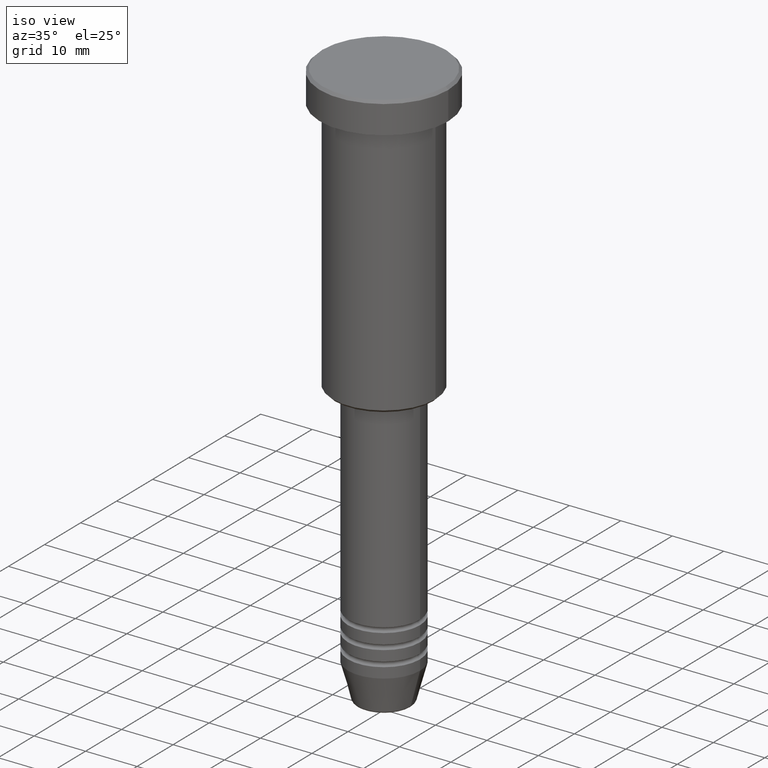
[diagram: clean part render]
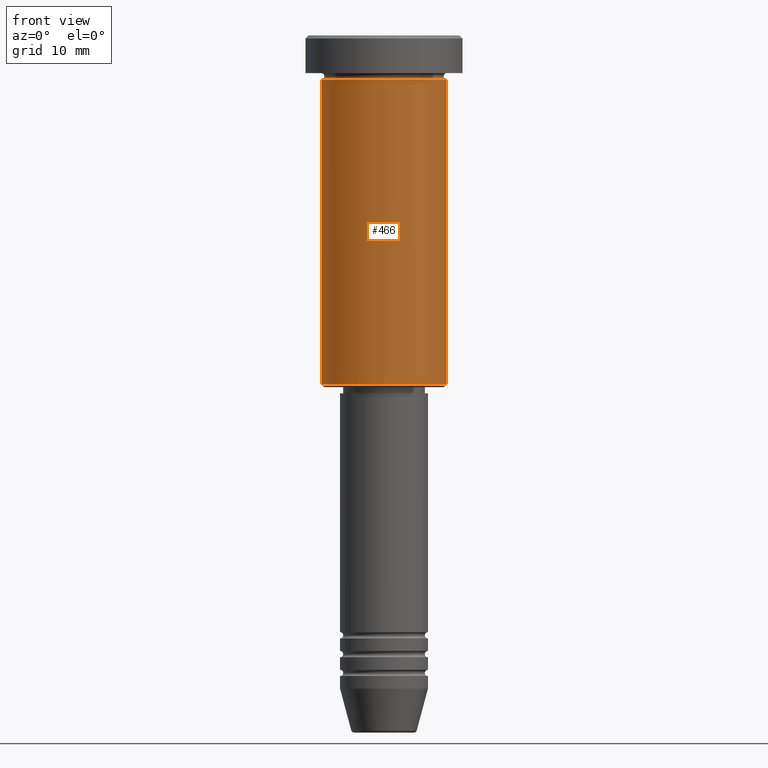
[diagram: tour spotlight — one face highlighted and labeled with its STEP entity id]
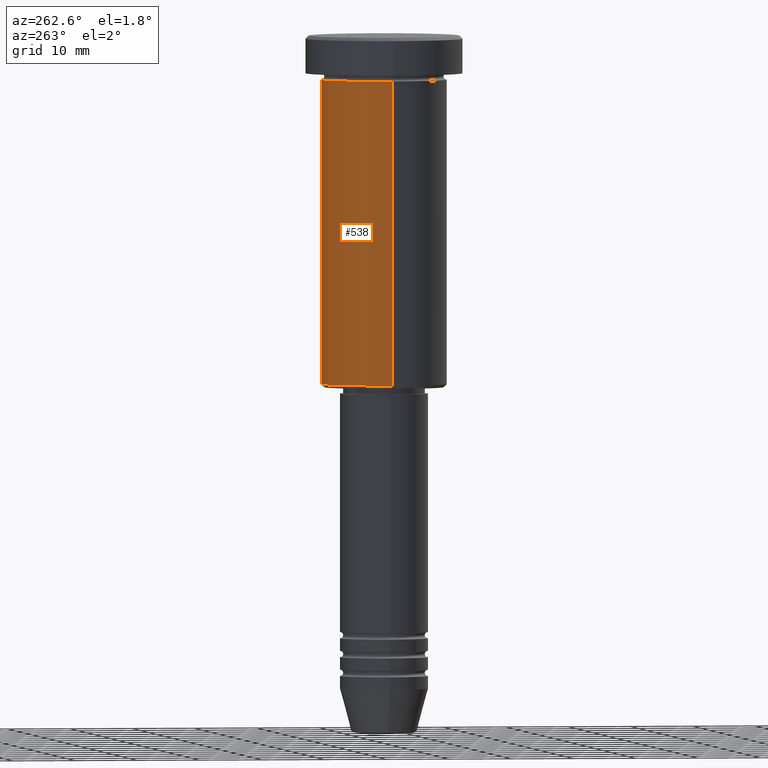
[diagram: tour spotlight — one face highlighted and labeled with its STEP entity id]
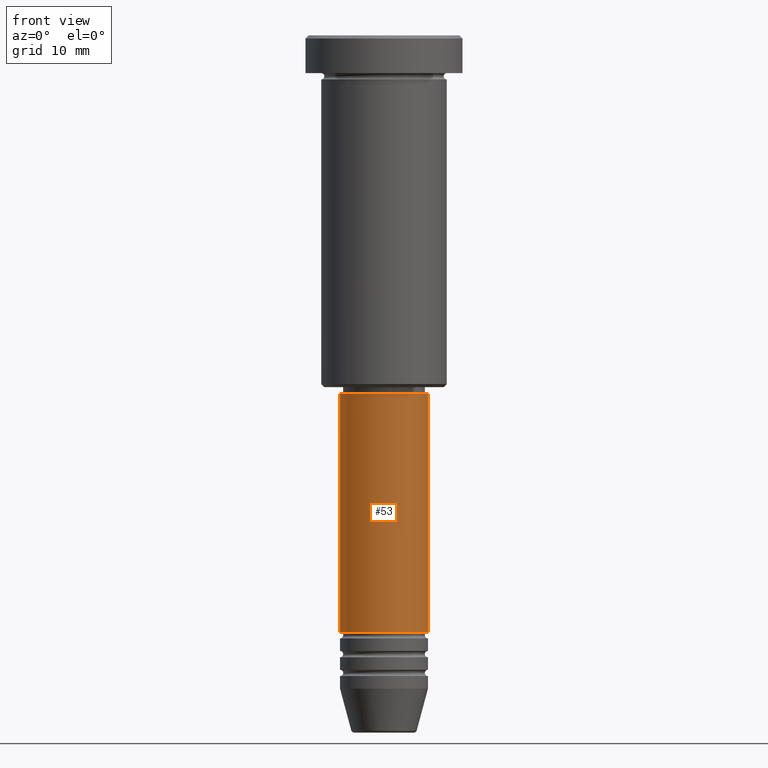
[diagram: tour spotlight — one face highlighted and labeled with its STEP entity id]
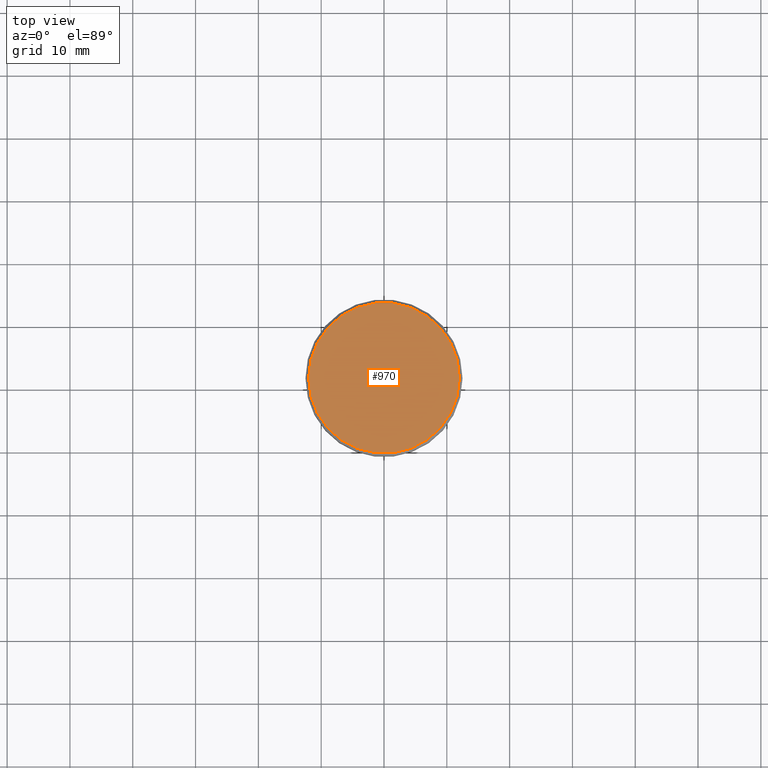
[diagram: tour spotlight — one face highlighted and labeled with its STEP entity id]
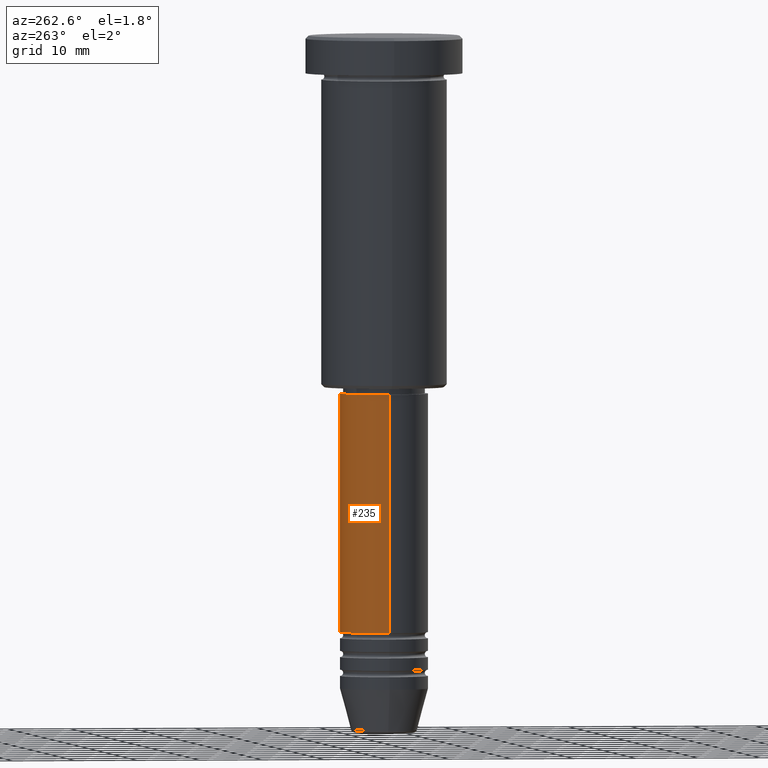
[diagram: tour spotlight — one face highlighted and labeled with its STEP entity id]
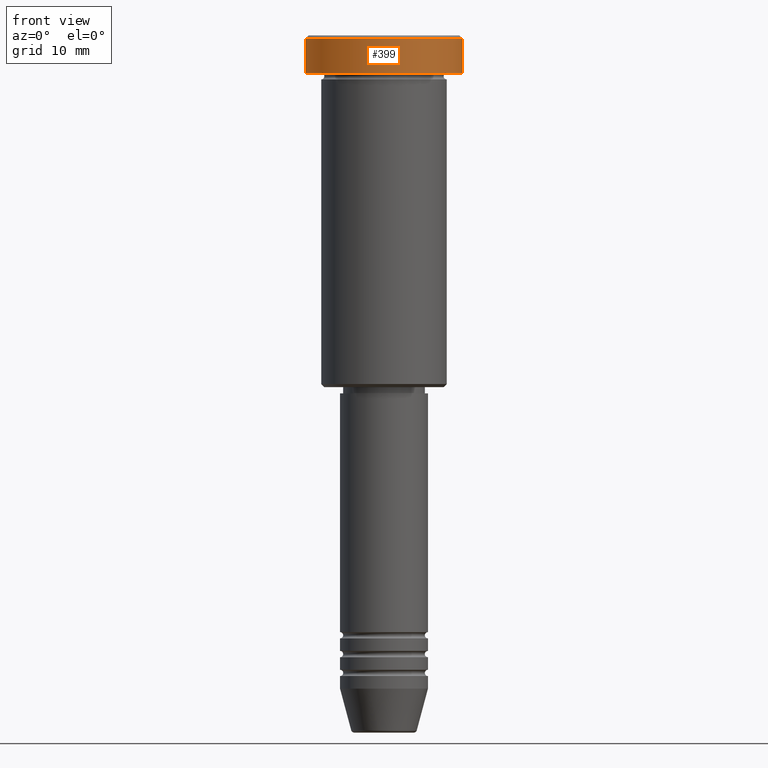
[diagram: tour spotlight — one face highlighted and labeled with its STEP entity id]
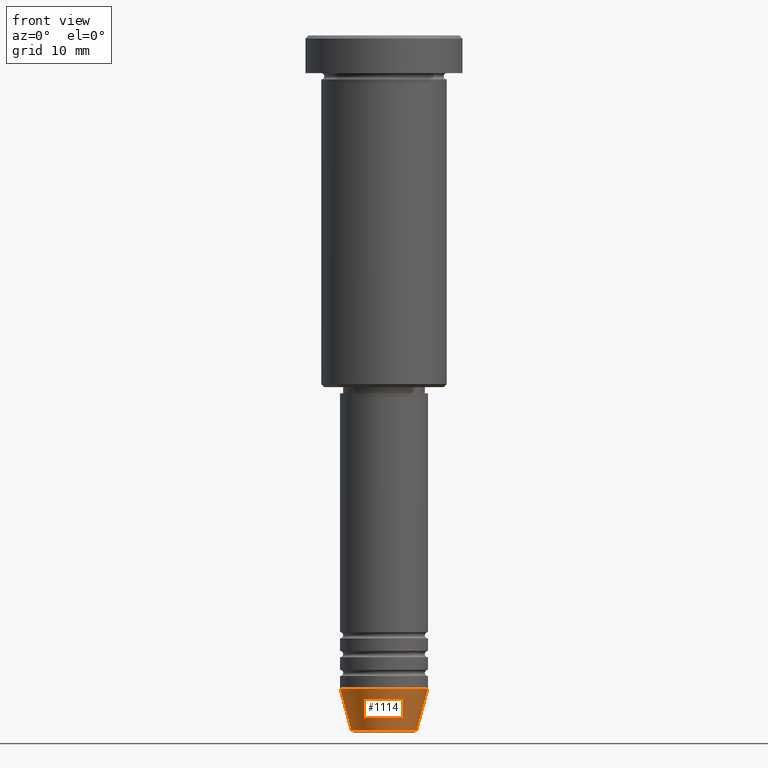
[diagram: tour spotlight — one face highlighted and labeled with its STEP entity id]
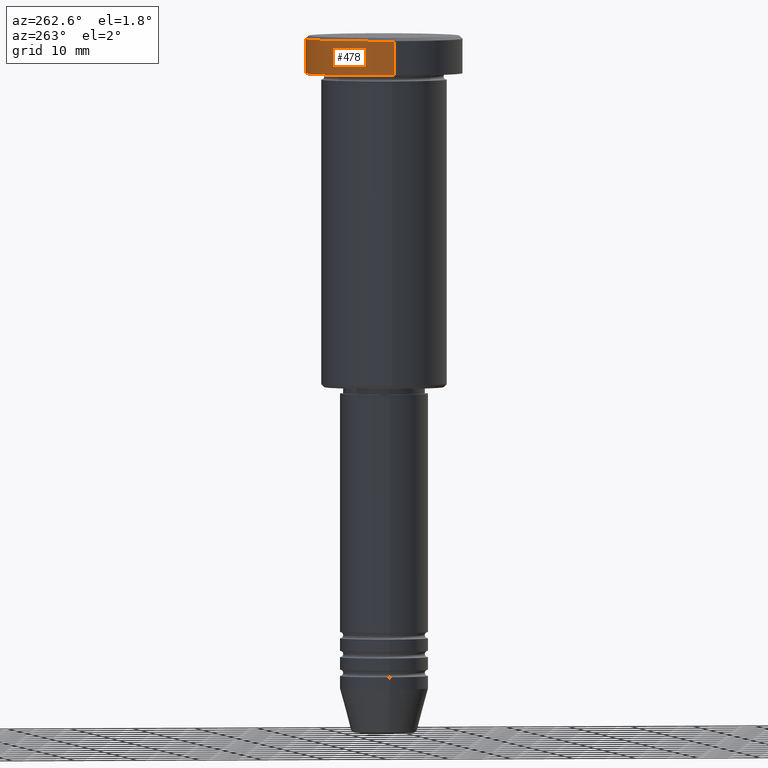
[diagram: tour spotlight — one face highlighted and labeled with its STEP entity id]
A machine part: a face-by-face anatomy tour. The part has 43 B-rep faces; the first image is the clean iso view, then the 8 largest visible faces are spotlighted one at a time (largest first), each with its STEP entity span.

Face 1 — front view, entity #466. In plain terms, the highlighted cylindrical surface (partial cylindrical patch) has radius 10 mm, axis along (-0, -0, 1).
Definition (entity closure, byte-faithful):
#26 = LINE ( 'NONE', #290, #376 ) ;
#75 = DIRECTION ( 'NONE',  ( -0.000000000000000000, -0.000000000000000000, 1.000000000000000000 ) ) ;
#79 = LINE ( 'NONE', #543, #1092 ) ;
#105 = DIRECTION ( 'NONE',  ( -0.000000000000000000, -0.000000000000000000, 1.000000000000000000 ) ) ;
#147 = DIRECTION ( 'NONE',  ( 1.000000000000000000, 0.000000000000000000, 0.000000000000000000 ) ) ;
#150 = VERTEX_POINT ( 'NONE', #474 ) ;
#176 = EDGE_CURVE ( 'NONE', #794, #150, #802, .T. ) ;
#186 = DIRECTION ( 'NONE',  ( -1.000000000000000000, 0.000000000000000000, 0.000000000000000000 ) ) ;
#197 = EDGE_CURVE ( 'NONE', #349, #530, #1106, .T. ) ;
#225 = ORIENTED_EDGE ( 'NONE', *, *, #176, .F. ) ;
#238 = CARTESIAN_POINT ( 'NONE',  ( 10.00000000000000000, 0.000000000000000000, -55.49999999999997868 ) ) ;
#272 = DIRECTION ( 'NONE',  ( -0.000000000000000000, -0.000000000000000000, 1.000000000000000000 ) ) ;
#290 = CARTESIAN_POINT ( 'NONE',  ( 10.00000000000000000, 0.000000000000000000, 0.000000000000000000 ) ) ;
#349 = VERTEX_POINT ( 'NONE', #662 ) ;
#353 = CYLINDRICAL_SURFACE ( 'NONE', #822, 10.00000000000000000 ) ;
#376 = VECTOR ( 'NONE', #999, 1000.000000000000000 ) ;
#428 = CARTESIAN_POINT ( 'NONE',  ( -10.00000000000000000, 1.224646799147353256E-15, -6.999999999999996447 ) ) ;
#466 = ADVANCED_FACE ( 'NONE', ( #705 ), #353, .T. ) ;
#467 = CARTESIAN_POINT ( 'NONE',  ( 0.000000000000000000, 0.000000000000000000, -55.49999999999997868 ) ) ;
#474 = CARTESIAN_POINT ( 'NONE',  ( 10.00000000000000000, 0.000000000000000000, -6.999999999999996447 ) ) ;
#530 = VERTEX_POINT ( 'NONE', #238 ) ;
#543 = CARTESIAN_POINT ( 'NONE',  ( -10.00000000000000000, 1.224646799147353256E-15, 0.000000000000000000 ) ) ;
#557 = CARTESIAN_POINT ( 'NONE',  ( 0.000000000000000000, 0.000000000000000000, -6.999999999999996447 ) ) ;
#662 = CARTESIAN_POINT ( 'NONE',  ( -10.00000000000000000, 1.224646799147353256E-15, -55.49999999999997868 ) ) ;
#668 = EDGE_CURVE ( 'NONE', #349, #794, #79, .T. ) ;
#705 = FACE_OUTER_BOUND ( 'NONE', #780, .T. ) ;
#711 = AXIS2_PLACEMENT_3D ( 'NONE', #557, #272, #1096 ) ;
#714 = CARTESIAN_POINT ( 'NONE',  ( 0.000000000000000000, 0.000000000000000000, 0.000000000000000000 ) ) ;
#741 = ORIENTED_EDGE ( 'NONE', *, *, #1062, .T. ) ;
#780 = EDGE_LOOP ( 'NONE', ( #800, #830, #741, #225 ) ) ;
#794 = VERTEX_POINT ( 'NONE', #428 ) ;
#800 = ORIENTED_EDGE ( 'NONE', *, *, #668, .F. ) ;
#802 = CIRCLE ( 'NONE', #711, 10.00000000000000000 ) ;
#822 = AXIS2_PLACEMENT_3D ( 'NONE', #714, #75, #147 ) ;
#830 = ORIENTED_EDGE ( 'NONE', *, *, #197, .T. ) ;
#999 = DIRECTION ( 'NONE',  ( -0.000000000000000000, -0.000000000000000000, 1.000000000000000000 ) ) ;
#1015 = DIRECTION ( 'NONE',  ( -0.000000000000000000, -0.000000000000000000, 1.000000000000000000 ) ) ;
#1062 = EDGE_CURVE ( 'NONE', #530, #150, #26, .T. ) ;
#1073 = AXIS2_PLACEMENT_3D ( 'NONE', #467, #105, #186 ) ;
#1092 = VECTOR ( 'NONE', #1015, 1000.000000000000000 ) ;
#1096 = DIRECTION ( 'NONE',  ( 1.000000000000000000, 0.000000000000000000, 0.000000000000000000 ) ) ;
#1106 = CIRCLE ( 'NONE', #1073, 10.00000000000000000 ) ;

Face 2 — auxiliary view, entity #538. In plain terms, the highlighted cylindrical surface (partial cylindrical patch) has radius 10 mm, axis along (-0, -0, 1).
Definition (entity closure, byte-faithful):
#26 = LINE ( 'NONE', #290, #376 ) ;
#63 = CIRCLE ( 'NONE', #600, 10.00000000000000000 ) ;
#79 = LINE ( 'NONE', #543, #1092 ) ;
#123 = EDGE_CURVE ( 'NONE', #530, #349, #63, .T. ) ;
#143 = AXIS2_PLACEMENT_3D ( 'NONE', #274, #1183, #1163 ) ;
#150 = VERTEX_POINT ( 'NONE', #474 ) ;
#165 = CARTESIAN_POINT ( 'NONE',  ( 0.000000000000000000, 0.000000000000000000, 0.000000000000000000 ) ) ;
#238 = CARTESIAN_POINT ( 'NONE',  ( 10.00000000000000000, 0.000000000000000000, -55.49999999999997868 ) ) ;
#256 = CYLINDRICAL_SURFACE ( 'NONE', #841, 10.00000000000000000 ) ;
#274 = CARTESIAN_POINT ( 'NONE',  ( 0.000000000000000000, 0.000000000000000000, -6.999999999999996447 ) ) ;
#290 = CARTESIAN_POINT ( 'NONE',  ( 10.00000000000000000, 0.000000000000000000, 0.000000000000000000 ) ) ;
#343 = DIRECTION ( 'NONE',  ( -0.000000000000000000, -0.000000000000000000, 1.000000000000000000 ) ) ;
#349 = VERTEX_POINT ( 'NONE', #662 ) ;
#376 = VECTOR ( 'NONE', #999, 1000.000000000000000 ) ;
#428 = CARTESIAN_POINT ( 'NONE',  ( -10.00000000000000000, 1.224646799147353256E-15, -6.999999999999996447 ) ) ;
#439 = FACE_OUTER_BOUND ( 'NONE', #522, .T. ) ;
#455 = ORIENTED_EDGE ( 'NONE', *, *, #877, .F. ) ;
#474 = CARTESIAN_POINT ( 'NONE',  ( 10.00000000000000000, 0.000000000000000000, -6.999999999999996447 ) ) ;
#522 = EDGE_LOOP ( 'NONE', ( #629, #703, #455, #672 ) ) ;
#530 = VERTEX_POINT ( 'NONE', #238 ) ;
#533 = DIRECTION ( 'NONE',  ( -0.000000000000000000, -0.000000000000000000, 1.000000000000000000 ) ) ;
#538 = ADVANCED_FACE ( 'NONE', ( #439 ), #256, .T. ) ;
#543 = CARTESIAN_POINT ( 'NONE',  ( -10.00000000000000000, 1.224646799147353256E-15, 0.000000000000000000 ) ) ;
#600 = AXIS2_PLACEMENT_3D ( 'NONE', #788, #343, #1004 ) ;
#629 = ORIENTED_EDGE ( 'NONE', *, *, #123, .T. ) ;
#655 = CIRCLE ( 'NONE', #143, 10.00000000000000000 ) ;
#662 = CARTESIAN_POINT ( 'NONE',  ( -10.00000000000000000, 1.224646799147353256E-15, -55.49999999999997868 ) ) ;
#668 = EDGE_CURVE ( 'NONE', #349, #794, #79, .T. ) ;
#672 = ORIENTED_EDGE ( 'NONE', *, *, #1062, .F. ) ;
#703 = ORIENTED_EDGE ( 'NONE', *, *, #668, .T. ) ;
#788 = CARTESIAN_POINT ( 'NONE',  ( 0.000000000000000000, 0.000000000000000000, -55.49999999999997868 ) ) ;
#794 = VERTEX_POINT ( 'NONE', #428 ) ;
#841 = AXIS2_PLACEMENT_3D ( 'NONE', #165, #533, #885 ) ;
#877 = EDGE_CURVE ( 'NONE', #150, #794, #655, .T. ) ;
#885 = DIRECTION ( 'NONE',  ( 1.000000000000000000, 0.000000000000000000, 0.000000000000000000 ) ) ;
#999 = DIRECTION ( 'NONE',  ( -0.000000000000000000, -0.000000000000000000, 1.000000000000000000 ) ) ;
#1004 = DIRECTION ( 'NONE',  ( -1.000000000000000000, 0.000000000000000000, 0.000000000000000000 ) ) ;
#1015 = DIRECTION ( 'NONE',  ( -0.000000000000000000, -0.000000000000000000, 1.000000000000000000 ) ) ;
#1062 = EDGE_CURVE ( 'NONE', #530, #150, #26, .T. ) ;
#1092 = VECTOR ( 'NONE', #1015, 1000.000000000000000 ) ;
#1163 = DIRECTION ( 'NONE',  ( 1.000000000000000000, 0.000000000000000000, 0.000000000000000000 ) ) ;
#1183 = DIRECTION ( 'NONE',  ( -0.000000000000000000, -0.000000000000000000, 1.000000000000000000 ) ) ;

Face 3 — front view, entity #53. In plain terms, the highlighted cylindrical surface (partial cylindrical patch) has radius 7 mm, axis along (-0, -0, 1).
Definition (entity closure, byte-faithful):
#43 = AXIS2_PLACEMENT_3D ( 'NONE', #805, #835, #361 ) ;
#53 = ADVANCED_FACE ( 'NONE', ( #1057 ), #445, .T. ) ;
#67 = ORIENTED_EDGE ( 'NONE', *, *, #1095, .T. ) ;
#73 = CARTESIAN_POINT ( 'NONE',  ( 0.000000000000000000, 0.000000000000000000, -94.99999999999997158 ) ) ;
#135 = CARTESIAN_POINT ( 'NONE',  ( 7.000000000000000000, 0.000000000000000000, -94.99999999999997158 ) ) ;
#140 = VECTOR ( 'NONE', #234, 1000.000000000000000 ) ;
#234 = DIRECTION ( 'NONE',  ( -0.000000000000000000, -0.000000000000000000, 1.000000000000000000 ) ) ;
#236 = AXIS2_PLACEMENT_3D ( 'NONE', #1068, #622, #355 ) ;
#251 = CARTESIAN_POINT ( 'NONE',  ( -7.000000000000000000, 8.572527594031473190E-16, -94.99999999999997158 ) ) ;
#273 = ORIENTED_EDGE ( 'NONE', *, *, #797, .F. ) ;
#355 = DIRECTION ( 'NONE',  ( 1.000000000000000000, 0.000000000000000000, 0.000000000000000000 ) ) ;
#361 = DIRECTION ( 'NONE',  ( 1.000000000000000000, 0.000000000000000000, 0.000000000000000000 ) ) ;
#384 = DIRECTION ( 'NONE',  ( -0.000000000000000000, -0.000000000000000000, 1.000000000000000000 ) ) ;
#445 = CYLINDRICAL_SURFACE ( 'NONE', #236, 7.000000000000000000 ) ;
#475 = VERTEX_POINT ( 'NONE', #251 ) ;
#480 = LINE ( 'NONE', #1104, #694 ) ;
#485 = CARTESIAN_POINT ( 'NONE',  ( 7.000000000000000000, 0.000000000000000000, -57.00000000000000000 ) ) ;
#529 = AXIS2_PLACEMENT_3D ( 'NONE', #73, #893, #718 ) ;
#621 = CIRCLE ( 'NONE', #43, 7.000000000000000000 ) ;
#622 = DIRECTION ( 'NONE',  ( -0.000000000000000000, -0.000000000000000000, 1.000000000000000000 ) ) ;
#684 = CARTESIAN_POINT ( 'NONE',  ( -7.000000000000000000, 8.572527594031473190E-16, 0.000000000000000000 ) ) ;
#689 = CARTESIAN_POINT ( 'NONE',  ( -7.000000000000000000, 8.572527594031473190E-16, -57.00000000000000000 ) ) ;
#692 = EDGE_CURVE ( 'NONE', #774, #990, #621, .T. ) ;
#694 = VECTOR ( 'NONE', #384, 1000.000000000000000 ) ;
#718 = DIRECTION ( 'NONE',  ( 1.000000000000000000, 0.000000000000000000, 0.000000000000000000 ) ) ;
#764 = VERTEX_POINT ( 'NONE', #135 ) ;
#774 = VERTEX_POINT ( 'NONE', #689 ) ;
#775 = LINE ( 'NONE', #684, #140 ) ;
#797 = EDGE_CURVE ( 'NONE', #475, #774, #775, .T. ) ;
#805 = CARTESIAN_POINT ( 'NONE',  ( 0.000000000000000000, 0.000000000000000000, -57.00000000000000000 ) ) ;
#835 = DIRECTION ( 'NONE',  ( -0.000000000000000000, -0.000000000000000000, 1.000000000000000000 ) ) ;
#890 = EDGE_CURVE ( 'NONE', #475, #764, #916, .T. ) ;
#893 = DIRECTION ( 'NONE',  ( -0.000000000000000000, -0.000000000000000000, 1.000000000000000000 ) ) ;
#901 = EDGE_LOOP ( 'NONE', ( #273, #1045, #67, #980 ) ) ;
#916 = CIRCLE ( 'NONE', #529, 7.000000000000000000 ) ;
#980 = ORIENTED_EDGE ( 'NONE', *, *, #692, .F. ) ;
#990 = VERTEX_POINT ( 'NONE', #485 ) ;
#1045 = ORIENTED_EDGE ( 'NONE', *, *, #890, .T. ) ;
#1057 = FACE_OUTER_BOUND ( 'NONE', #901, .T. ) ;
#1068 = CARTESIAN_POINT ( 'NONE',  ( 0.000000000000000000, 0.000000000000000000, 0.000000000000000000 ) ) ;
#1095 = EDGE_CURVE ( 'NONE', #764, #990, #480, .T. ) ;
#1104 = CARTESIAN_POINT ( 'NONE',  ( 7.000000000000000000, 0.000000000000000000, 0.000000000000000000 ) ) ;

Face 4 — top view, entity #970. In plain terms, the highlighted planar face has unit normal (0, -0, 1).
Definition (entity closure, byte-faithful):
#86 = AXIS2_PLACEMENT_3D ( 'NONE', #537, #250, #875 ) ;
#177 = CARTESIAN_POINT ( 'NONE',  ( 0.000000000000000000, 0.000000000000000000, 0.000000000000000000 ) ) ;
#189 = CARTESIAN_POINT ( 'NONE',  ( 0.000000000000000000, 0.000000000000000000, 0.000000000000000000 ) ) ;
#209 = EDGE_CURVE ( 'NONE', #505, #407, #838, .T. ) ;
#250 = DIRECTION ( 'NONE',  ( 0.000000000000000000, -0.000000000000000000, 1.000000000000000000 ) ) ;
#286 = DIRECTION ( 'NONE',  ( -0.000000000000000000, -0.000000000000000000, 1.000000000000000000 ) ) ;
#407 = VERTEX_POINT ( 'NONE', #492 ) ;
#477 = DIRECTION ( 'NONE',  ( 1.000000000000000000, 0.000000000000000000, 0.000000000000000000 ) ) ;
#492 = CARTESIAN_POINT ( 'NONE',  ( -12.00000000000001066, 0.000000000000000000, 0.000000000000000000 ) ) ;
#505 = VERTEX_POINT ( 'NONE', #968 ) ;
#537 = CARTESIAN_POINT ( 'NONE',  ( 0.000000000000000000, 0.000000000000000000, 0.000000000000000000 ) ) ;
#603 = CIRCLE ( 'NONE', #1156, 12.00000000000001066 ) ;
#710 = PLANE ( 'NONE',  #86 ) ;
#752 = ORIENTED_EDGE ( 'NONE', *, *, #1082, .T. ) ;
#771 = ORIENTED_EDGE ( 'NONE', *, *, #209, .T. ) ;
#829 = DIRECTION ( 'NONE',  ( -0.000000000000000000, -0.000000000000000000, 1.000000000000000000 ) ) ;
#838 = CIRCLE ( 'NONE', #953, 12.00000000000001066 ) ;
#875 = DIRECTION ( 'NONE',  ( 1.000000000000000000, 0.000000000000000000, 0.000000000000000000 ) ) ;
#892 = EDGE_LOOP ( 'NONE', ( #752, #771 ) ) ;
#902 = FACE_OUTER_BOUND ( 'NONE', #892, .T. ) ;
#953 = AXIS2_PLACEMENT_3D ( 'NONE', #177, #829, #477 ) ;
#968 = CARTESIAN_POINT ( 'NONE',  ( 12.00000000000001066, 1.500192328955508326E-15, 0.000000000000000000 ) ) ;
#970 = ADVANCED_FACE ( 'NONE', ( #902 ), #710, .T. ) ;
#1003 = DIRECTION ( 'NONE',  ( 1.000000000000000000, 0.000000000000000000, 0.000000000000000000 ) ) ;
#1082 = EDGE_CURVE ( 'NONE', #407, #505, #603, .T. ) ;
#1156 = AXIS2_PLACEMENT_3D ( 'NONE', #189, #286, #1003 ) ;

Face 5 — auxiliary view, entity #235. In plain terms, the highlighted cylindrical surface (partial cylindrical patch) has radius 7 mm, axis along (-0, -0, 1).
Definition (entity closure, byte-faithful):
#48 = ORIENTED_EDGE ( 'NONE', *, *, #1095, .F. ) ;
#135 = CARTESIAN_POINT ( 'NONE',  ( 7.000000000000000000, 0.000000000000000000, -94.99999999999997158 ) ) ;
#140 = VECTOR ( 'NONE', #234, 1000.000000000000000 ) ;
#179 = ORIENTED_EDGE ( 'NONE', *, *, #797, .T. ) ;
#196 = CARTESIAN_POINT ( 'NONE',  ( 0.000000000000000000, 0.000000000000000000, -94.99999999999997158 ) ) ;
#234 = DIRECTION ( 'NONE',  ( -0.000000000000000000, -0.000000000000000000, 1.000000000000000000 ) ) ;
#235 = ADVANCED_FACE ( 'NONE', ( #989 ), #546, .T. ) ;
#242 = AXIS2_PLACEMENT_3D ( 'NONE', #196, #396, #834 ) ;
#251 = CARTESIAN_POINT ( 'NONE',  ( -7.000000000000000000, 8.572527594031473190E-16, -94.99999999999997158 ) ) ;
#291 = DIRECTION ( 'NONE',  ( -0.000000000000000000, -0.000000000000000000, 1.000000000000000000 ) ) ;
#372 = EDGE_LOOP ( 'NONE', ( #908, #179, #613, #48 ) ) ;
#384 = DIRECTION ( 'NONE',  ( -0.000000000000000000, -0.000000000000000000, 1.000000000000000000 ) ) ;
#396 = DIRECTION ( 'NONE',  ( -0.000000000000000000, -0.000000000000000000, 1.000000000000000000 ) ) ;
#458 = CARTESIAN_POINT ( 'NONE',  ( 0.000000000000000000, 0.000000000000000000, 0.000000000000000000 ) ) ;
#475 = VERTEX_POINT ( 'NONE', #251 ) ;
#480 = LINE ( 'NONE', #1104, #694 ) ;
#485 = CARTESIAN_POINT ( 'NONE',  ( 7.000000000000000000, 0.000000000000000000, -57.00000000000000000 ) ) ;
#546 = CYLINDRICAL_SURFACE ( 'NONE', #1049, 7.000000000000000000 ) ;
#613 = ORIENTED_EDGE ( 'NONE', *, *, #932, .F. ) ;
#634 = CARTESIAN_POINT ( 'NONE',  ( 0.000000000000000000, 0.000000000000000000, -57.00000000000000000 ) ) ;
#647 = DIRECTION ( 'NONE',  ( 1.000000000000000000, 0.000000000000000000, 0.000000000000000000 ) ) ;
#684 = CARTESIAN_POINT ( 'NONE',  ( -7.000000000000000000, 8.572527594031473190E-16, 0.000000000000000000 ) ) ;
#689 = CARTESIAN_POINT ( 'NONE',  ( -7.000000000000000000, 8.572527594031473190E-16, -57.00000000000000000 ) ) ;
#694 = VECTOR ( 'NONE', #384, 1000.000000000000000 ) ;
#704 = DIRECTION ( 'NONE',  ( -0.000000000000000000, -0.000000000000000000, 1.000000000000000000 ) ) ;
#715 = CIRCLE ( 'NONE', #242, 7.000000000000000000 ) ;
#733 = AXIS2_PLACEMENT_3D ( 'NONE', #634, #704, #991 ) ;
#764 = VERTEX_POINT ( 'NONE', #135 ) ;
#774 = VERTEX_POINT ( 'NONE', #689 ) ;
#775 = LINE ( 'NONE', #684, #140 ) ;
#797 = EDGE_CURVE ( 'NONE', #475, #774, #775, .T. ) ;
#834 = DIRECTION ( 'NONE',  ( 1.000000000000000000, 0.000000000000000000, 0.000000000000000000 ) ) ;
#908 = ORIENTED_EDGE ( 'NONE', *, *, #1071, .T. ) ;
#932 = EDGE_CURVE ( 'NONE', #990, #774, #1135, .T. ) ;
#989 = FACE_OUTER_BOUND ( 'NONE', #372, .T. ) ;
#990 = VERTEX_POINT ( 'NONE', #485 ) ;
#991 = DIRECTION ( 'NONE',  ( 1.000000000000000000, 0.000000000000000000, 0.000000000000000000 ) ) ;
#1049 = AXIS2_PLACEMENT_3D ( 'NONE', #458, #291, #647 ) ;
#1071 = EDGE_CURVE ( 'NONE', #764, #475, #715, .T. ) ;
#1095 = EDGE_CURVE ( 'NONE', #764, #990, #480, .T. ) ;
#1104 = CARTESIAN_POINT ( 'NONE',  ( 7.000000000000000000, 0.000000000000000000, 0.000000000000000000 ) ) ;
#1135 = CIRCLE ( 'NONE', #733, 7.000000000000000000 ) ;

Face 6 — front view, entity #399. In plain terms, the highlighted cylindrical surface (partial cylindrical patch) has radius 12.5 mm, axis along (-0, -0, 1).
Definition (entity closure, byte-faithful):
#12 = DIRECTION ( 'NONE',  ( -0.000000000000000000, -0.000000000000000000, 1.000000000000000000 ) ) ;
#37 = VERTEX_POINT ( 'NONE', #540 ) ;
#60 = ORIENTED_EDGE ( 'NONE', *, *, #275, .T. ) ;
#83 = DIRECTION ( 'NONE',  ( -0.000000000000000000, -0.000000000000000000, 1.000000000000000000 ) ) ;
#96 = CARTESIAN_POINT ( 'NONE',  ( 0.000000000000000000, 0.000000000000000000, -0.5000000000000056621 ) ) ;
#109 = CARTESIAN_POINT ( 'NONE',  ( 12.50000000000000000, 0.000000000000000000, -0.5000000000000056621 ) ) ;
#195 = VERTEX_POINT ( 'NONE', #109 ) ;
#220 = EDGE_CURVE ( 'NONE', #37, #328, #370, .T. ) ;
#244 = ORIENTED_EDGE ( 'NONE', *, *, #910, .T. ) ;
#260 = VECTOR ( 'NONE', #400, 1000.000000000000000 ) ;
#275 = EDGE_CURVE ( 'NONE', #358, #195, #1000, .T. ) ;
#282 = CIRCLE ( 'NONE', #935, 12.50000000000000000 ) ;
#287 = CARTESIAN_POINT ( 'NONE',  ( 12.50000000000000000, 0.000000000000000000, 0.000000000000000000 ) ) ;
#328 = VERTEX_POINT ( 'NONE', #1109 ) ;
#352 = DIRECTION ( 'NONE',  ( 1.000000000000000000, 0.000000000000000000, 0.000000000000000000 ) ) ;
#358 = VERTEX_POINT ( 'NONE', #1022 ) ;
#370 = LINE ( 'NONE', #1011, #878 ) ;
#394 = DIRECTION ( 'NONE',  ( -0.000000000000000000, -0.000000000000000000, 1.000000000000000000 ) ) ;
#399 = ADVANCED_FACE ( 'NONE', ( #1137 ), #574, .T. ) ;
#400 = DIRECTION ( 'NONE',  ( -0.000000000000000000, -0.000000000000000000, 1.000000000000000000 ) ) ;
#540 = CARTESIAN_POINT ( 'NONE',  ( -12.50000000000000000, 1.530808498934191521E-15, -5.999999999999996447 ) ) ;
#574 = CYLINDRICAL_SURFACE ( 'NONE', #992, 12.50000000000000000 ) ;
#626 = CARTESIAN_POINT ( 'NONE',  ( 0.000000000000000000, 0.000000000000000000, -5.999999999999996447 ) ) ;
#751 = DIRECTION ( 'NONE',  ( 1.000000000000000000, 0.000000000000000000, 0.000000000000000000 ) ) ;
#825 = AXIS2_PLACEMENT_3D ( 'NONE', #96, #827, #1098 ) ;
#827 = DIRECTION ( 'NONE',  ( 0.000000000000000000, 0.000000000000000000, -1.000000000000000000 ) ) ;
#870 = ORIENTED_EDGE ( 'NONE', *, *, #220, .F. ) ;
#878 = VECTOR ( 'NONE', #12, 1000.000000000000000 ) ;
#910 = EDGE_CURVE ( 'NONE', #37, #358, #282, .T. ) ;
#920 = EDGE_LOOP ( 'NONE', ( #870, #244, #60, #1018 ) ) ;
#923 = CARTESIAN_POINT ( 'NONE',  ( 0.000000000000000000, 0.000000000000000000, 0.000000000000000000 ) ) ;
#935 = AXIS2_PLACEMENT_3D ( 'NONE', #626, #83, #352 ) ;
#957 = CIRCLE ( 'NONE', #825, 12.50000000000000000 ) ;
#992 = AXIS2_PLACEMENT_3D ( 'NONE', #923, #394, #751 ) ;
#1000 = LINE ( 'NONE', #287, #260 ) ;
#1011 = CARTESIAN_POINT ( 'NONE',  ( -12.50000000000000000, 1.530808498934191521E-15, 0.000000000000000000 ) ) ;
#1018 = ORIENTED_EDGE ( 'NONE', *, *, #1055, .T. ) ;
#1022 = CARTESIAN_POINT ( 'NONE',  ( 12.50000000000000000, 0.000000000000000000, -5.999999999999996447 ) ) ;
#1055 = EDGE_CURVE ( 'NONE', #195, #328, #957, .T. ) ;
#1098 = DIRECTION ( 'NONE',  ( 1.000000000000000000, 0.000000000000000000, 0.000000000000000000 ) ) ;
#1109 = CARTESIAN_POINT ( 'NONE',  ( -12.50000000000000000, 1.530808498934191521E-15, -0.5000000000000056621 ) ) ;
#1137 = FACE_OUTER_BOUND ( 'NONE', #920, .T. ) ;

Face 7 — front view, entity #1114. In plain terms, the highlighted conical surface has half-angle 15 deg.
Definition (entity closure, byte-faithful):
#34 = LINE ( 'NONE', #667, #1131 ) ;
#74 = EDGE_CURVE ( 'NONE', #688, #616, #468, .T. ) ;
#80 = DIRECTION ( 'NONE',  ( -0.000000000000000000, -0.000000000000000000, 1.000000000000000000 ) ) ;
#87 = CARTESIAN_POINT ( 'NONE',  ( -5.223655072137193045, 7.484830028987060174E-16, -110.6294095225512564 ) ) ;
#91 = DIRECTION ( 'NONE',  ( 0.2588190451025213501, 0.000000000000000000, 0.9659258262890680902 ) ) ;
#133 = ORIENTED_EDGE ( 'NONE', *, *, #1130, .F. ) ;
#206 = CARTESIAN_POINT ( 'NONE',  ( 0.000000000000000000, 0.000000000000000000, -104.0000000000000142 ) ) ;
#224 = CARTESIAN_POINT ( 'NONE',  ( -7.000000000000000000, 8.572527594031473190E-16, -104.0000000000000142 ) ) ;
#247 = DIRECTION ( 'NONE',  ( 1.000000000000000000, 0.000000000000000000, 0.000000000000000000 ) ) ;
#301 = CARTESIAN_POINT ( 'NONE',  ( 7.000000000000000000, 0.000000000000000000, -104.0000000000000142 ) ) ;
#308 = CARTESIAN_POINT ( 'NONE',  ( 5.223655072137193045, 0.000000000000000000, -110.6294095225512564 ) ) ;
#326 = ORIENTED_EDGE ( 'NONE', *, *, #965, .T. ) ;
#327 = EDGE_CURVE ( 'NONE', #688, #367, #34, .T. ) ;
#357 = CONICAL_SURFACE ( 'NONE', #1110, 7.000000000000000000, 0.2617993877991500740 ) ;
#367 = VERTEX_POINT ( 'NONE', #224 ) ;
#454 = VECTOR ( 'NONE', #91, 1000.000000000000000 ) ;
#468 = CIRCLE ( 'NONE', #928, 5.223655072137193045 ) ;
#550 = CARTESIAN_POINT ( 'NONE',  ( 7.000000000000000000, 0.000000000000000000, -104.0000000000000142 ) ) ;
#556 = DIRECTION ( 'NONE',  ( 1.000000000000000000, 0.000000000000000000, 0.000000000000000000 ) ) ;
#559 = DIRECTION ( 'NONE',  ( -0.000000000000000000, -0.000000000000000000, 1.000000000000000000 ) ) ;
#616 = VERTEX_POINT ( 'NONE', #308 ) ;
#628 = CARTESIAN_POINT ( 'NONE',  ( 0.000000000000000000, 0.000000000000000000, -110.6294095225512564 ) ) ;
#667 = CARTESIAN_POINT ( 'NONE',  ( -7.000000000000000000, 8.572527594031473190E-16, -104.0000000000000142 ) ) ;
#688 = VERTEX_POINT ( 'NONE', #87 ) ;
#746 = FACE_OUTER_BOUND ( 'NONE', #1111, .T. ) ;
#813 = ORIENTED_EDGE ( 'NONE', *, *, #74, .T. ) ;
#820 = DIRECTION ( 'NONE',  ( -0.000000000000000000, -0.000000000000000000, 1.000000000000000000 ) ) ;
#842 = CIRCLE ( 'NONE', #1012, 7.000000000000000000 ) ;
#906 = DIRECTION ( 'NONE',  ( 1.000000000000000000, 0.000000000000000000, 0.000000000000000000 ) ) ;
#928 = AXIS2_PLACEMENT_3D ( 'NONE', #628, #80, #247 ) ;
#965 = EDGE_CURVE ( 'NONE', #616, #1146, #1086, .T. ) ;
#1012 = AXIS2_PLACEMENT_3D ( 'NONE', #206, #820, #906 ) ;
#1014 = CARTESIAN_POINT ( 'NONE',  ( 0.000000000000000000, 0.000000000000000000, -104.0000000000000142 ) ) ;
#1028 = DIRECTION ( 'NONE',  ( -0.2588190451025213501, 3.169619151431772337E-17, 0.9659258262890680902 ) ) ;
#1029 = ORIENTED_EDGE ( 'NONE', *, *, #327, .F. ) ;
#1086 = LINE ( 'NONE', #550, #454 ) ;
#1110 = AXIS2_PLACEMENT_3D ( 'NONE', #1014, #559, #556 ) ;
#1111 = EDGE_LOOP ( 'NONE', ( #1029, #813, #326, #133 ) ) ;
#1114 = ADVANCED_FACE ( 'NONE', ( #746 ), #357, .T. ) ;
#1130 = EDGE_CURVE ( 'NONE', #367, #1146, #842, .T. ) ;
#1131 = VECTOR ( 'NONE', #1028, 1000.000000000000000 ) ;
#1146 = VERTEX_POINT ( 'NONE', #301 ) ;

Face 8 — auxiliary view, entity #478. In plain terms, the highlighted cylindrical surface (partial cylindrical patch) has radius 12.5 mm, axis along (-0, -0, 1).
Definition (entity closure, byte-faithful):
#12 = DIRECTION ( 'NONE',  ( -0.000000000000000000, -0.000000000000000000, 1.000000000000000000 ) ) ;
#37 = VERTEX_POINT ( 'NONE', #540 ) ;
#50 = CARTESIAN_POINT ( 'NONE',  ( 0.000000000000000000, 0.000000000000000000, 0.000000000000000000 ) ) ;
#56 = DIRECTION ( 'NONE',  ( 1.000000000000000000, 0.000000000000000000, 0.000000000000000000 ) ) ;
#85 = CIRCLE ( 'NONE', #673, 12.50000000000000000 ) ;
#99 = ORIENTED_EDGE ( 'NONE', *, *, #275, .F. ) ;
#109 = CARTESIAN_POINT ( 'NONE',  ( 12.50000000000000000, 0.000000000000000000, -0.5000000000000056621 ) ) ;
#124 = ORIENTED_EDGE ( 'NONE', *, *, #220, .T. ) ;
#145 = EDGE_LOOP ( 'NONE', ( #1023, #124, #1138, #99 ) ) ;
#195 = VERTEX_POINT ( 'NONE', #109 ) ;
#220 = EDGE_CURVE ( 'NONE', #37, #328, #370, .T. ) ;
#260 = VECTOR ( 'NONE', #400, 1000.000000000000000 ) ;
#262 = AXIS2_PLACEMENT_3D ( 'NONE', #958, #867, #56 ) ;
#275 = EDGE_CURVE ( 'NONE', #358, #195, #1000, .T. ) ;
#287 = CARTESIAN_POINT ( 'NONE',  ( 12.50000000000000000, 0.000000000000000000, 0.000000000000000000 ) ) ;
#328 = VERTEX_POINT ( 'NONE', #1109 ) ;
#336 = FACE_OUTER_BOUND ( 'NONE', #145, .T. ) ;
#356 = CIRCLE ( 'NONE', #262, 12.50000000000000000 ) ;
#358 = VERTEX_POINT ( 'NONE', #1022 ) ;
#370 = LINE ( 'NONE', #1011, #878 ) ;
#400 = DIRECTION ( 'NONE',  ( -0.000000000000000000, -0.000000000000000000, 1.000000000000000000 ) ) ;
#425 = DIRECTION ( 'NONE',  ( -0.000000000000000000, -0.000000000000000000, 1.000000000000000000 ) ) ;
#478 = ADVANCED_FACE ( 'NONE', ( #336 ), #963, .T. ) ;
#540 = CARTESIAN_POINT ( 'NONE',  ( -12.50000000000000000, 1.530808498934191521E-15, -5.999999999999996447 ) ) ;
#555 = EDGE_CURVE ( 'NONE', #358, #37, #356, .T. ) ;
#599 = DIRECTION ( 'NONE',  ( 1.000000000000000000, 0.000000000000000000, 0.000000000000000000 ) ) ;
#673 = AXIS2_PLACEMENT_3D ( 'NONE', #767, #1147, #599 ) ;
#686 = DIRECTION ( 'NONE',  ( 1.000000000000000000, 0.000000000000000000, 0.000000000000000000 ) ) ;
#767 = CARTESIAN_POINT ( 'NONE',  ( 0.000000000000000000, 0.000000000000000000, -0.5000000000000056621 ) ) ;
#791 = EDGE_CURVE ( 'NONE', #328, #195, #85, .T. ) ;
#867 = DIRECTION ( 'NONE',  ( -0.000000000000000000, -0.000000000000000000, 1.000000000000000000 ) ) ;
#878 = VECTOR ( 'NONE', #12, 1000.000000000000000 ) ;
#912 = AXIS2_PLACEMENT_3D ( 'NONE', #50, #425, #686 ) ;
#958 = CARTESIAN_POINT ( 'NONE',  ( 0.000000000000000000, 0.000000000000000000, -5.999999999999996447 ) ) ;
#963 = CYLINDRICAL_SURFACE ( 'NONE', #912, 12.50000000000000000 ) ;
#1000 = LINE ( 'NONE', #287, #260 ) ;
#1011 = CARTESIAN_POINT ( 'NONE',  ( -12.50000000000000000, 1.530808498934191521E-15, 0.000000000000000000 ) ) ;
#1022 = CARTESIAN_POINT ( 'NONE',  ( 12.50000000000000000, 0.000000000000000000, -5.999999999999996447 ) ) ;
#1023 = ORIENTED_EDGE ( 'NONE', *, *, #555, .T. ) ;
#1109 = CARTESIAN_POINT ( 'NONE',  ( -12.50000000000000000, 1.530808498934191521E-15, -0.5000000000000056621 ) ) ;
#1138 = ORIENTED_EDGE ( 'NONE', *, *, #791, .T. ) ;
#1147 = DIRECTION ( 'NONE',  ( 0.000000000000000000, 0.000000000000000000, -1.000000000000000000 ) ) ;